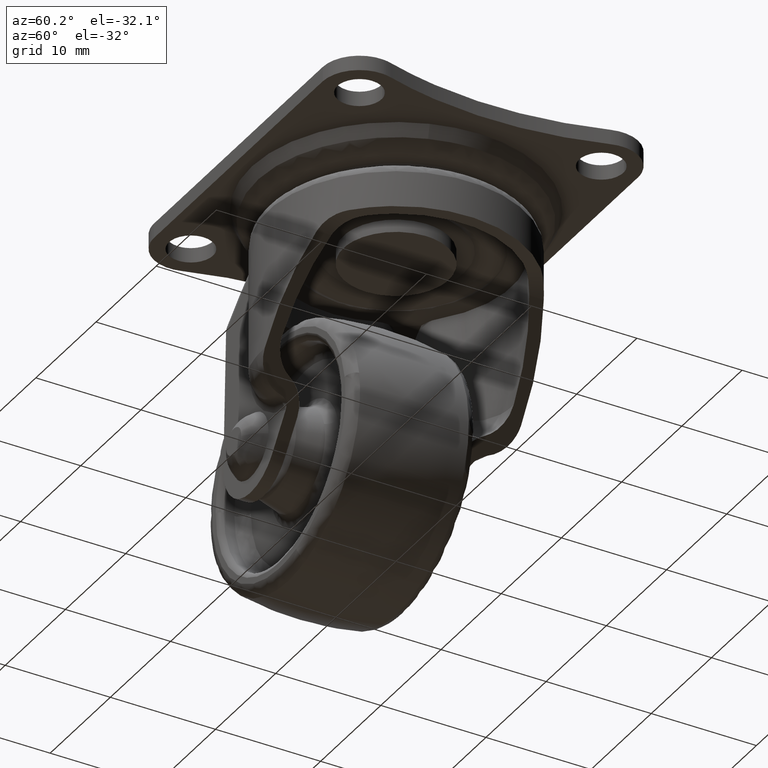
[diagram: clean part render]
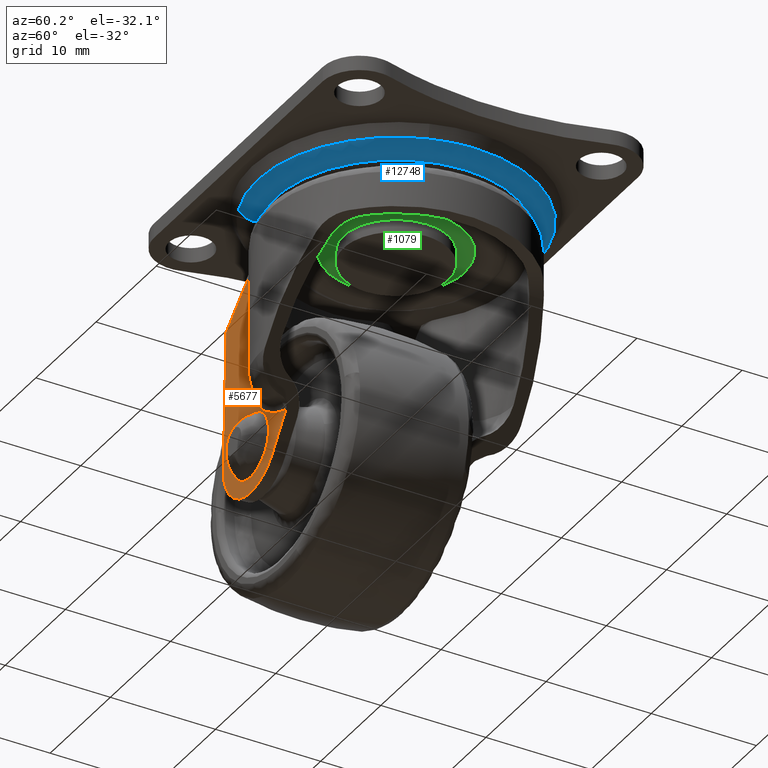
[diagram: same view with three faces highlighted in distinct colors, each labeled with its STEP entity id]
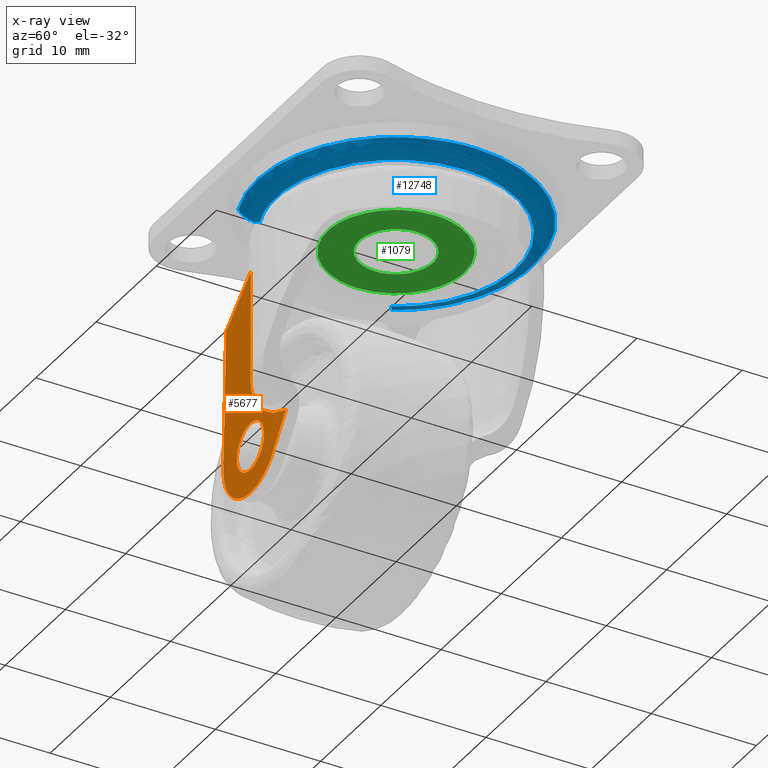
[diagram: x-ray of the same camera — body ghosted, the three highlighted faces saturated]
A machine part, auxiliary view with three faces highlighted in distinct colors.
The next image is the same camera in x-ray (body ghosted, the three faces saturated) — at least one of them is partly hidden behind the body in this view.
Their STEP definitions:

[orange] entity #5677 — the highlighted face is a freeform B-spline surface patch.
#472=CARTESIAN_POINT('',(-11.249914326893560,-8.700001000000000,-22.480363295034369));
#473=VERTEX_POINT('',#472);
#479=CARTESIAN_POINT('',(-9.0,-8.700001000000000,-24.749998000000001));
#480=VERTEX_POINT('',#479);
#481=CARTESIAN_POINT('',(-11.249914326893563,-8.700001000000000,-22.480363295034376));
#482=CARTESIAN_POINT('',(-11.250000000000004,-8.700001000000000,-22.490180460559131));
#483=CARTESIAN_POINT('',(-11.250000000000000,-8.700001000000000,-22.499998000000001));
#484=CARTESIAN_POINT('',(-11.250000000000000,-8.700001000000000,-24.749998000000005));
#485=CARTESIAN_POINT('',(-9.0,-8.700001000000000,-24.749998000000001));
#493=(BOUNDED_CURVE()B_SPLINE_CURVE(2,(#481,#482,#483,#484,#485),.UNSPECIFIED.,.F.,.U.)B_SPLINE_CURVE_WITH_KNOTS((3,2,3),(0.248460105650250,0.250000000000000,0.500000000000000),.UNSPECIFIED.)CURVE()GEOMETRIC_REPRESENTATION_ITEM()RATIONAL_B_SPLINE_CURVE((0.996414028066240,0.998195901549076,1.0,0.707106781186547,1.0))REPRESENTATION_ITEM(''));
#494=EDGE_CURVE('',#473,#480,#493,.T.);
#496=CARTESIAN_POINT('',(-6.767401026231349,-8.700001000000000,-22.779286063345289));
#497=VERTEX_POINT('',#496);
#498=CARTESIAN_POINT('',(-9.0,-8.700001000000000,-24.749998000000001));
#499=CARTESIAN_POINT('',(-7.013928254850907,-8.700000999999999,-24.749997999999991));
#500=CARTESIAN_POINT('',(-6.767401026231349,-8.700001000000000,-22.779286063345285));
#508=(BOUNDED_CURVE()B_SPLINE_CURVE(2,(#498,#499,#500),.UNSPECIFIED.,.F.,.U.)B_SPLINE_CURVE_WITH_KNOTS((3,3),(0.500000000000000,0.728526062166332),.UNSPECIFIED.)CURVE()GEOMETRIC_REPRESENTATION_ITEM()RATIONAL_B_SPLINE_CURVE((1.0,0.732265064277359,0.954005413075127))REPRESENTATION_ITEM(''));
#509=EDGE_CURVE('',#480,#497,#508,.T.);
#559=CARTESIAN_POINT('',(-9.0,-8.700001000000000,-20.249998000000001));
#560=VERTEX_POINT('',#559);
#561=CARTESIAN_POINT('',(-6.767401026231349,-8.700001000000000,-22.779286063345292));
#562=CARTESIAN_POINT('',(-6.750000000000000,-8.700001000000000,-22.640184146302783));
#563=CARTESIAN_POINT('',(-6.749999999999999,-8.700001000000000,-22.499998000000001));
#564=CARTESIAN_POINT('',(-6.749999999999998,-8.700001000000000,-20.249998000000009));
#565=CARTESIAN_POINT('',(-9.0,-8.700001000000000,-20.249998000000001));
#573=(BOUNDED_CURVE()B_SPLINE_CURVE(2,(#561,#562,#563,#564,#565),.UNSPECIFIED.,.F.,.U.)B_SPLINE_CURVE_WITH_KNOTS((3,2,3),(0.728526062166331,0.750000000000000,1.0),.UNSPECIFIED.)CURVE()GEOMETRIC_REPRESENTATION_ITEM()RATIONAL_B_SPLINE_CURVE((0.954005413075126,0.974841716909187,1.0,0.707106781186547,1.0))REPRESENTATION_ITEM(''));
#574=EDGE_CURVE('',#497,#560,#573,.T.);
#576=CARTESIAN_POINT('',(-9.0,-8.700001000000000,-20.249998000000001));
#577=CARTESIAN_POINT('',(-11.230450223651754,-8.700001000000000,-20.249997999999994));
#578=CARTESIAN_POINT('',(-11.249914326893563,-8.700001000000000,-22.480363295034376));
#586=(BOUNDED_CURVE()B_SPLINE_CURVE(2,(#576,#577,#578),.UNSPECIFIED.,.F.,.U.)B_SPLINE_CURVE_WITH_KNOTS((3,3),(0.0,0.248460105650250),.UNSPECIFIED.)CURVE()GEOMETRIC_REPRESENTATION_ITEM()RATIONAL_B_SPLINE_CURVE((1.0,0.708910879637471,0.996414028066240))REPRESENTATION_ITEM(''));
#587=EDGE_CURVE('',#560,#473,#586,.T.);
#1970=CARTESIAN_POINT('',(-8.952652154529352,-8.700001000000000,-5.549854102424480));
#1971=VERTEX_POINT('',#1970);
#2156=CARTESIAN_POINT('',(-13.046715876436259,-8.700001000000000,-9.166312362105970));
#2157=VERTEX_POINT('',#2156);
#2175=CARTESIAN_POINT('',(-8.952652154529352,-8.700001000000000,-5.549854102424480));
#2176=CARTESIAN_POINT('',(-9.656898944636879,-8.700001000000004,-6.127801723857024));
#2177=CARTESIAN_POINT('',(-10.346634401134139,-8.700000999999999,-6.722177109755606));
#2178=CARTESIAN_POINT('',(-11.708511184854499,-8.700000999999999,-7.930845569303217));
#2179=CARTESIAN_POINT('',(-12.380521905948619,-8.700001000000000,-8.545286497504012));
#2180=CARTESIAN_POINT('',(-13.046715876436240,-8.700001000000000,-9.166312362105980));
#2181=B_SPLINE_CURVE_WITH_KNOTS('',3,(#2175,#2176,#2177,#2178,#2179,#2180),.UNSPECIFIED.,.F.,.U.,(4,2,4),(0.0,0.500000000000000,1.0),.UNSPECIFIED.);
#2182=EDGE_CURVE('',#1971,#2157,#2181,.T.);
#2947=CARTESIAN_POINT('',(-3.132371273860845,-8.700001000000000,-22.115442874786950));
#2948=VERTEX_POINT('',#2947);
#3003=CARTESIAN_POINT('',(-8.952652154529352,-8.700001000000000,-16.126446853378749));
#3004=VERTEX_POINT('',#3003);
#3018=CARTESIAN_POINT('',(-3.132371273860845,-8.700001000000000,-22.115442874786950));
#3019=CARTESIAN_POINT('',(-3.491875737716829,-8.700001000000006,-22.015678301536742));
#3020=CARTESIAN_POINT('',(-3.844392835921416,-8.700000999999997,-21.898165202276981));
#3021=CARTESIAN_POINT('',(-4.362097079651821,-8.700000999999999,-21.693773210269448));
#3022=CARTESIAN_POINT('',(-4.532814870132990,-8.700000999999997,-21.620942644278362));
#3023=CARTESIAN_POINT('',(-4.870381061016619,-8.700001000000000,-21.465452919679290));
#3024=CARTESIAN_POINT('',(-5.037400315005284,-8.700000999999999,-21.382703512003371));
#3025=CARTESIAN_POINT('',(-5.531215003361037,-8.700001000000000,-21.119431517261440));
#3026=CARTESIAN_POINT('',(-5.847684703294849,-8.700000999999999,-20.925674089011189));
#3027=CARTESIAN_POINT('',(-6.301860433897275,-8.700001000000000,-20.605642364634122));
#3028=CARTESIAN_POINT('',(-6.449819336341913,-8.700000999999999,-20.494049338222109));
#3029=CARTESIAN_POINT('',(-6.666294592126086,-8.700000999999997,-20.318837091439939));
#3030=CARTESIAN_POINT('',(-6.737541372187183,-8.700000999999997,-20.259127617725291));
#3031=CARTESIAN_POINT('',(-6.878143552612761,-8.700000999999999,-20.137000370020150));
#3032=CARTESIAN_POINT('',(-6.947610512345516,-8.700000999999999,-20.074477370695138));
#3033=CARTESIAN_POINT('',(-7.288619872482950,-8.700001000000000,-19.756115116027161));
#3034=CARTESIAN_POINT('',(-7.539831650200234,-8.700000999999999,-19.484719579597272));
#3035=CARTESIAN_POINT('',(-7.995028026538497,-8.700000999999999,-18.905395111188120));
#3036=CARTESIAN_POINT('',(-8.199181669370745,-8.700000999999999,-18.597596946261941));
#3037=CARTESIAN_POINT('',(-8.418426637289313,-8.700001000000002,-18.185041754605479));
#3038=CARTESIAN_POINT('',(-8.460462932629474,-8.700000999999999,-18.101062355315928));
#3039=CARTESIAN_POINT('',(-8.539749535586772,-8.700000999999999,-17.932022792782082));
#3040=CARTESIAN_POINT('',(-8.577124633309605,-8.700000999999995,-17.846739447784859));
#3041=CARTESIAN_POINT('',(-8.682192511991890,-8.700001000000000,-17.588513618415181));
#3042=CARTESIAN_POINT('',(-8.742868523907625,-8.700001000000000,-17.413209022467921));
#3043=CARTESIAN_POINT('',(-8.818215439898957,-8.700001000000000,-17.144977985637500));
#3044=CARTESIAN_POINT('',(-8.840710895470526,-8.700001000000000,-17.054685586653271));
#3045=CARTESIAN_POINT('',(-8.880047508013664,-8.700000999999999,-16.872197336527961));
#3046=CARTESIAN_POINT('',(-8.896922530312445,-8.700000999999997,-16.779759701748720));
#3047=CARTESIAN_POINT('',(-8.937974617308090,-8.700000999999999,-16.501213530575420));
#3048=CARTESIAN_POINT('',(-8.952652190188296,-8.700000999999999,-16.314447781594829));
#3049=CARTESIAN_POINT('',(-8.952652154529352,-8.700001000000000,-16.126446853378749));
#3050=B_SPLINE_CURVE_WITH_KNOTS('',3,(#3018,#3019,#3020,#3021,#3022,#3023,#3024,#3025,#3026,#3027,#3028,#3029,#3030,#3031,#3032,#3033,#3034,#3035,#3036,#3037,#3038,#3039,#3040,#3041,#3042,#3043,#3044,#3045,#3046,#3047,#3048,#3049),.UNSPECIFIED.,.F.,.U.,(4,2,2,2,2,2,2,2,2,2,2,2,2,2,2,4),(0.0,0.124999999999999,0.187499999999999,0.249999999999998,0.374999999999997,0.437499999999997,0.468749999999997,0.499999999999998,0.624999999999998,0.749999999999998,0.781249999999997,0.812499999999997,0.874999999999997,0.906249999999997,0.937499999999998,1.0),.UNSPECIFIED.);
#3051=EDGE_CURVE('',#2948,#3004,#3050,.T.);
#3072=CARTESIAN_POINT('',(-8.952652154529352,-8.700001000000000,-16.126446853378749));
#3073=CARTESIAN_POINT('',(-8.952652154529352,-8.700001000000000,-5.549854102424480));
#3074=QUASI_UNIFORM_CURVE('',1,(#3072,#3073),.UNSPECIFIED.,.F.,.U.);
#3075=EDGE_CURVE('',#3004,#1971,#3074,.T.);
#4630=CARTESIAN_POINT('',(-13.497372000000000,-8.700001000000000,-22.346223999999999));
#4631=VERTEX_POINT('',#4630);
#4637=CARTESIAN_POINT('',(-13.046715876436259,-8.700001000000000,-9.166312362105970));
#4638=CARTESIAN_POINT('',(-13.497372000000000,-8.700001000000000,-22.346223999999999));
#4639=QUASI_UNIFORM_CURVE('',1,(#4637,#4638),.UNSPECIFIED.,.F.,.U.);
#4640=EDGE_CURVE('',#2157,#4631,#4639,.T.);
#4736=CARTESIAN_POINT('',(-8.999999933181520,-8.700001000000000,-26.999998000000001));
#4737=VERTEX_POINT('',#4736);
#4743=CARTESIAN_POINT('',(-13.497372000000000,-8.700001000000000,-22.346223999999999));
#4744=CARTESIAN_POINT('',(-13.562612075466793,-8.700001000000000,-24.254279281736331));
#4745=CARTESIAN_POINT('',(-12.235891153172700,-8.700001000000000,-25.627138640868171));
#4746=CARTESIAN_POINT('',(-10.909170230878608,-8.700001000000000,-26.999998000000016));
#4747=CARTESIAN_POINT('',(-8.999999933181520,-8.700001000000000,-26.999998000000019));
#4755=(BOUNDED_CURVE()B_SPLINE_CURVE(2,(#4743,#4744,#4745,#4746,#4747),.UNSPECIFIED.,.F.,.U.)B_SPLINE_CURVE_WITH_KNOTS((3,2,3),(0.0,0.500000000000000,1.0),.UNSPECIFIED.)CURVE()GEOMETRIC_REPRESENTATION_ITEM()RATIONAL_B_SPLINE_CURVE((1.0,0.920575949235637,1.0,0.920575949235637,1.0))REPRESENTATION_ITEM(''));
#4756=EDGE_CURVE('',#4631,#4737,#4755,.T.);
#4878=CARTESIAN_POINT('',(-5.374184000000000,-8.700001000000000,-25.165234000000002));
#4879=VERTEX_POINT('',#4878);
#4880=CARTESIAN_POINT('',(-5.374184000000000,-8.700001000000000,-25.165234000000002));
#4881=CARTESIAN_POINT('',(-3.132371273860845,-8.700001000000000,-22.115442874786950));
#4882=QUASI_UNIFORM_CURVE('',1,(#4880,#4881),.UNSPECIFIED.,.F.,.U.);
#4883=EDGE_CURVE('',#4879,#2948,#4882,.T.);
#4967=CARTESIAN_POINT('',(-8.999999933181520,-8.700001000000000,-26.999997999999959));
#4968=CARTESIAN_POINT('',(-6.722871384703336,-8.700001000000000,-26.999997408354549));
#4969=CARTESIAN_POINT('',(-5.374183999999980,-8.700001000000000,-25.165234000000019));
#4977=(BOUNDED_CURVE()B_SPLINE_CURVE(2,(#4967,#4968,#4969),.UNSPECIFIED.,.F.,.U.)CURVE()GEOMETRIC_REPRESENTATION_ITEM()QUASI_UNIFORM_CURVE()RATIONAL_B_SPLINE_CURVE((1.0,0.892265566084803,1.0))REPRESENTATION_ITEM(''));
#4978=EDGE_CURVE('',#4737,#4879,#4977,.T.);
#5657=CARTESIAN_POINT('',(-14.016981932848079,-8.700001000000000,-4.478419657673728));
#5658=CARTESIAN_POINT('',(-14.016981932848079,-8.700001000000000,-28.071433211867681));
#5659=CARTESIAN_POINT('',(-2.614549878342332,-8.700001000000000,-4.478419657673728));
#5660=CARTESIAN_POINT('',(-2.614549878342332,-8.700001000000000,-28.071433211867681));
#5661=B_SPLINE_SURFACE_WITH_KNOTS('',1,1,((#5657,#5659),(#5658,#5660)),.UNSPECIFIED.,.F.,.F.,.U.,(2,2),(2,2),(0.0,23.593013554193949),(0.0,11.402432054505750),.UNSPECIFIED.);
#5662=ORIENTED_EDGE('',*,*,#3075,.T.);
#5663=ORIENTED_EDGE('',*,*,#2182,.T.);
#5664=ORIENTED_EDGE('',*,*,#4640,.T.);
#5665=ORIENTED_EDGE('',*,*,#4756,.T.);
#5666=ORIENTED_EDGE('',*,*,#4978,.T.);
#5667=ORIENTED_EDGE('',*,*,#4883,.T.);
#5668=ORIENTED_EDGE('',*,*,#3051,.T.);
#5669=EDGE_LOOP('',(#5662,#5663,#5664,#5665,#5666,#5667,#5668));
#5670=FACE_OUTER_BOUND('',#5669,.T.);
#5671=ORIENTED_EDGE('',*,*,#587,.F.);
#5672=ORIENTED_EDGE('',*,*,#574,.F.);
#5673=ORIENTED_EDGE('',*,*,#509,.F.);
#5674=ORIENTED_EDGE('',*,*,#494,.F.);
#5675=EDGE_LOOP('',(#5671,#5672,#5673,#5674));
#5676=FACE_BOUND('',#5675,.T.);
#5677=ADVANCED_FACE('',(#5670,#5676),#5661,.T.);

[blue] entity #12748 — the highlighted face is a freeform B-spline surface patch.
#9897=CARTESIAN_POINT('',(12.508432404109939,-4.110425278932556,-2.800139212492120));
#9898=VERTEX_POINT('',#9897);
#9899=CARTESIAN_POINT('',(13.166490693493159,0.0,-2.800139212494620));
#9900=VERTEX_POINT('',#9899);
#9901=CARTESIAN_POINT('',(12.508432404109948,-4.110425278932557,-2.800139212492120));
#9902=CARTESIAN_POINT('',(13.166490693493163,-2.107888540729940,-2.800139212494620));
#9903=CARTESIAN_POINT('',(13.166490693493159,0.0,-2.800139212494620));
#9911=(BOUNDED_CURVE()B_SPLINE_CURVE(2,(#9901,#9902,#9903),.UNSPECIFIED.,.F.,.U.)B_SPLINE_CURVE_WITH_KNOTS((3,3),(0.446917947511327,0.500000000000000),.UNSPECIFIED.)CURVE()GEOMETRIC_REPRESENTATION_ITEM()RATIONAL_B_SPLINE_CURVE((0.902030181676226,0.937810507141472,1.0))REPRESENTATION_ITEM(''));
#9912=EDGE_CURVE('',#9898,#9900,#9911,.T.);
#9914=CARTESIAN_POINT('',(-11.616679221768109,6.197518942232530,-2.800139212573901));
#9915=VERTEX_POINT('',#9914);
#9916=CARTESIAN_POINT('',(13.166490693493159,0.0,-2.800139212494620));
#9917=CARTESIAN_POINT('',(13.166490693493161,13.166490693493161,-2.800139212494620));
#9918=CARTESIAN_POINT('',(0.0,13.166490693493159,-2.800139212494620));
#9919=CARTESIAN_POINT('',(-7.898720447894549,13.166490693493156,-2.800139212494620));
#9920=CARTESIAN_POINT('',(-11.616679221768115,6.197518942232530,-2.800139212573901));
#9928=(BOUNDED_CURVE()B_SPLINE_CURVE(2,(#9916,#9917,#9918,#9919,#9920),.UNSPECIFIED.,.F.,.U.)B_SPLINE_CURVE_WITH_KNOTS((3,2,3),(0.500000000000000,0.750000000000000,0.919885466191596),.UNSPECIFIED.)CURVE()GEOMETRIC_REPRESENTATION_ITEM()RATIONAL_B_SPLINE_CURVE((1.0,0.707106781186548,1.0,0.800966795910078,0.872436381135544))REPRESENTATION_ITEM(''));
#9929=EDGE_CURVE('',#9900,#9915,#9928,.T.);
#9946=CARTESIAN_POINT('',(-4.814755914170824,-12.254575058919229,-2.800138669547468));
#9947=VERTEX_POINT('',#9946);
#9961=CARTESIAN_POINT('',(7.074350292918480,-11.104505622265680,-2.800139212494335));
#9962=VERTEX_POINT('',#9961);
#9963=CARTESIAN_POINT('',(-4.814755914170824,-12.254575058919233,-2.800138669547468));
#9964=CARTESIAN_POINT('',(-2.493736449541153,-13.166490693493163,-2.800139212494620));
#9965=CARTESIAN_POINT('',(0.0,-13.166490693493159,-2.800139212494620));
#9966=CARTESIAN_POINT('',(3.837682066383953,-13.166490693493161,-2.800139212494621));
#9967=CARTESIAN_POINT('',(7.074350292918481,-11.104505622265684,-2.800139212494335));
#9975=(BOUNDED_CURVE()B_SPLINE_CURVE(2,(#9963,#9964,#9965,#9966,#9967),.UNSPECIFIED.,.F.,.U.)B_SPLINE_CURVE_WITH_KNOTS((3,2,3),(0.187908143668375,0.250000000000000,0.341950076714178),.UNSPECIFIED.)CURVE()GEOMETRIC_REPRESENTATION_ITEM()RATIONAL_B_SPLINE_CURVE((0.890644774292660,0.927254865347712,1.0,0.892273784244162,0.863791038911343))REPRESENTATION_ITEM(''));
#9976=EDGE_CURVE('',#9947,#9962,#9975,.T.);
#10086=CARTESIAN_POINT('',(7.074350292918480,-11.104505622265684,-2.800139212494335));
#10087=CARTESIAN_POINT('',(11.040375229036524,-8.577869081841332,-2.800139212494621));
#10088=CARTESIAN_POINT('',(12.508432404109941,-4.110425278932556,-2.800139212492121));
#10096=(BOUNDED_CURVE()B_SPLINE_CURVE(2,(#10086,#10087,#10088),.UNSPECIFIED.,.F.,.U.)B_SPLINE_CURVE_WITH_KNOTS((3,3),(0.341950076714179,0.446917947511327),.UNSPECIFIED.)CURVE()GEOMETRIC_REPRESENTATION_ITEM()RATIONAL_B_SPLINE_CURVE((0.863791038911343,0.831275860687654,0.902030181676226))REPRESENTATION_ITEM(''));
#10097=EDGE_CURVE('',#9962,#9898,#10096,.T.);
#12651=CARTESIAN_POINT('',(-4.123587455750639,-10.495402289907361,-3.897291385648118));
#12652=CARTESIAN_POINT('',(5.222481180251966,-14.167422696887394,-3.897291385648118));
#12653=CARTESIAN_POINT('',(9.949078400655541,-5.307850950227034,-3.897291385648118));
#12654=CARTESIAN_POINT('',(15.256929350882571,4.641227450428510,-3.897291385648118));
#12655=CARTESIAN_POINT('',(5.307850950227034,9.949078400655541,-3.897291385648118));
#12656=CARTESIAN_POINT('',(-4.641227450428509,15.256929350882574,-3.897291385648118));
#12657=CARTESIAN_POINT('',(-9.949078400655541,5.307850950227034,-3.897291385648118));
#12658=CARTESIAN_POINT('',(-4.627525765199482,-11.778031879728596,-3.969111935452208));
#12659=CARTESIAN_POINT('',(5.860713875774001,-15.898805169001593,-3.969111935452207));
#12660=CARTESIAN_POINT('',(11.164942451946214,-5.956516575333058,-3.969111935452206));
#12661=CARTESIAN_POINT('',(17.121459027279268,5.208425876613155,-3.969111935452206));
#12662=CARTESIAN_POINT('',(5.956516575333058,11.164942451946214,-3.969111935452206));
#12663=CARTESIAN_POINT('',(-5.208425876613155,17.121459027279268,-3.969111935452206));
#12664=CARTESIAN_POINT('',(-11.164942451946212,5.956516575333059,-3.969111935452206));
#12665=CARTESIAN_POINT('',(-4.830955026715707,-12.295802379339085,-2.706265578573673));
#12666=CARTESIAN_POINT('',(6.118354947093936,-16.597727737697632,-2.706265578573672));
#12667=CARTESIAN_POINT('',(11.655761112525330,-6.218369200172397,-2.706265578573672));
#12668=CARTESIAN_POINT('',(17.874130312697734,5.437391912352936,-2.706265578573673));
#12669=CARTESIAN_POINT('',(6.218369200172399,11.655761112525330,-2.706265578573672));
#12670=CARTESIAN_POINT('',(-5.437391912352935,17.874130312697734,-2.706265578573673));
#12671=CARTESIAN_POINT('',(-11.655761112525330,6.218369200172400,-2.706265578573672));
#12679=(BOUNDED_SURFACE()B_SPLINE_SURFACE(2,2,((#12651,#12658,#12665),(#12652,#12659,#12666),(#12653,#12660,#12667),(#12654,#12661,#12668),(#12655,#12662,#12669),(#12656,#12663,#12670),(#12657,#12664,#12671)),.UNSPECIFIED.,.F.,.F.,.U.)B_SPLINE_SURFACE_WITH_KNOTS((3,2,2,3),(3,3),(0.0,20.137280085757538,42.025628005059218,63.913975924360891),(0.0,2.492074945731570),.UNSPECIFIED.)GEOMETRIC_REPRESENTATION_ITEM()RATIONAL_B_SPLINE_SURFACE(((0.880321261608759,0.725771892352718,0.883209832469696),(0.672084516341903,0.554093229959051,0.674289806427076),(0.919985403564351,0.758472589951512,0.923004123144481),(0.650527917452995,0.536321111698838,0.652662474538605),(0.919985403564351,0.758472589951512,0.923004123144481),(0.650527917452995,0.536321111698838,0.652662474538605),(0.919985403564351,0.758472589951512,0.923004123144481)))REPRESENTATION_ITEM('')SURFACE());
#12680=ORIENTED_EDGE('',*,*,#9912,.F.);
#12681=ORIENTED_EDGE('',*,*,#10097,.F.);
#12682=ORIENTED_EDGE('',*,*,#9976,.F.);
#12683=CARTESIAN_POINT('',(-4.161652030387486,-10.592284683646660,-3.900002000000000));
#12684=VERTEX_POINT('',#12683);
#12685=CARTESIAN_POINT('',(-4.161652030387486,-10.592284683646655,-3.900002000000000));
#12686=CARTESIAN_POINT('',(-4.612047459739060,-11.738637742056763,-3.900001999517341));
#12687=CARTESIAN_POINT('',(-4.814755914170824,-12.254575058919226,-2.800138669547468));
#12695=(BOUNDED_CURVE()B_SPLINE_CURVE(2,(#12685,#12686,#12687),.UNSPECIFIED.,.F.,.U.)B_SPLINE_CURVE_WITH_KNOTS((3,3),(-1.642270600972632,-0.344513327966894),.UNSPECIFIED.)CURVE()GEOMETRIC_REPRESENTATION_ITEM()RATIONAL_B_SPLINE_CURVE((0.866927483260814,0.739296821813061,0.869553753073934))REPRESENTATION_ITEM(''));
#12696=EDGE_CURVE('',#12684,#9947,#12695,.T.);
#12697=ORIENTED_EDGE('',*,*,#12696,.F.);
#12698=CARTESIAN_POINT('',(11.380502731976520,0.0,-3.900002000000000));
#12699=VERTEX_POINT('',#12698);
#12700=CARTESIAN_POINT('',(11.380502731976520,0.0,-3.900002000000000));
#12701=CARTESIAN_POINT('',(11.380502731976520,-11.380502731976520,-3.900002000000001));
#12702=CARTESIAN_POINT('',(0.0,-11.380502731976520,-3.900002000000000));
#12703=CARTESIAN_POINT('',(-2.155470373647039,-11.380502731976520,-3.900002000000000));
#12704=CARTESIAN_POINT('',(-4.161652030387486,-10.592284683646655,-3.900002000000000));
#12712=(BOUNDED_CURVE()B_SPLINE_CURVE(2,(#12700,#12701,#12702,#12703,#12704),.UNSPECIFIED.,.F.,.U.)B_SPLINE_CURVE_WITH_KNOTS((3,2,3),(0.0,0.250000000000000,0.312091868783678),.UNSPECIFIED.)CURVE()GEOMETRIC_REPRESENTATION_ITEM()RATIONAL_B_SPLINE_CURVE((1.0,0.707106781186547,1.0,0.927254850759224,0.890644759608907))REPRESENTATION_ITEM(''));
#12713=EDGE_CURVE('',#12699,#12684,#12712,.T.);
#12714=ORIENTED_EDGE('',*,*,#12713,.F.);
#12715=CARTESIAN_POINT('',(-10.040917713465969,5.356847386335332,-3.900002000000000));
#12716=VERTEX_POINT('',#12715);
#12717=CARTESIAN_POINT('',(-10.040917713465966,5.356847386335332,-3.900002000000000));
#12718=CARTESIAN_POINT('',(-6.827286915581398,11.380502731976518,-3.900002000000000));
#12719=CARTESIAN_POINT('',(0.0,11.380502731976520,-3.900002000000000));
#12720=CARTESIAN_POINT('',(11.380502731976520,11.380502731976520,-3.900002000000001));
#12721=CARTESIAN_POINT('',(11.380502731976520,0.0,-3.900002000000000));
#12729=(BOUNDED_CURVE()B_SPLINE_CURVE(2,(#12717,#12718,#12719,#12720,#12721),.UNSPECIFIED.,.F.,.U.)B_SPLINE_CURVE_WITH_KNOTS((3,2,3),(0.580114533809270,0.750000000000000,1.0),.UNSPECIFIED.)CURVE()GEOMETRIC_REPRESENTATION_ITEM()RATIONAL_B_SPLINE_CURVE((0.872436381134815,0.800966795911093,1.0,0.707106781186547,1.0))REPRESENTATION_ITEM(''));
#12730=EDGE_CURVE('',#12716,#12699,#12729,.T.);
#12731=ORIENTED_EDGE('',*,*,#12730,.F.);
#12732=CARTESIAN_POINT('',(-10.040917713465966,5.356847386335332,-3.900001999999999));
#12733=CARTESIAN_POINT('',(-11.127598372361605,5.936593442724566,-3.900001999104041));
#12734=CARTESIAN_POINT('',(-11.616679221768111,6.197518942232530,-2.800139212573900));
#12742=(BOUNDED_CURVE()B_SPLINE_CURVE(2,(#12732,#12733,#12734),.UNSPECIFIED.,.F.,.U.)B_SPLINE_CURVE_WITH_KNOTS((3,3),(-1.642270600557982,-0.344513704832646),.UNSPECIFIED.)CURVE()GEOMETRIC_REPRESENTATION_ITEM()RATIONAL_B_SPLINE_CURVE((0.905988149162928,0.772606943359406,0.908732670367850))REPRESENTATION_ITEM(''));
#12743=EDGE_CURVE('',#12716,#9915,#12742,.T.);
#12744=ORIENTED_EDGE('',*,*,#12743,.T.);
#12745=ORIENTED_EDGE('',*,*,#9929,.F.);
#12746=EDGE_LOOP('',(#12680,#12681,#12682,#12697,#12714,#12731,#12744,#12745));
#12747=FACE_OUTER_BOUND('',#12746,.T.);
#12748=ADVANCED_FACE('',(#12747),#12679,.T.);

[green] entity #1079 — the highlighted face is a freeform B-spline surface patch.
#66=CARTESIAN_POINT('',(-0.413119821342078,-3.475533342267670,-5.699998000000001));
#67=VERTEX_POINT('',#66);
#68=CARTESIAN_POINT('',(3.500000000000004,0.0,-5.699998000000001));
#69=VERTEX_POINT('',#68);
#70=CARTESIAN_POINT('',(-0.413119821342078,-3.475533342267670,-5.699998000000001));
#71=CARTESIAN_POINT('',(-0.207284418825568,-3.500000000000000,-5.699998000000000));
#72=CARTESIAN_POINT('',(3.552714E-015,-3.500000000000000,-5.699998000000001));
#73=CARTESIAN_POINT('',(3.500000000000003,-3.500000000000000,-5.699998000000000));
#74=CARTESIAN_POINT('',(3.500000000000004,0.0,-5.699998000000001));
#82=(BOUNDED_CURVE()B_SPLINE_CURVE(2,(#70,#71,#72,#73,#74),.UNSPECIFIED.,.F.,.U.)B_SPLINE_CURVE_WITH_KNOTS((3,2,3),(0.229562473511421,0.250000000000000,0.500000000000000),.UNSPECIFIED.)CURVE()GEOMETRIC_REPRESENTATION_ITEM()RATIONAL_B_SPLINE_CURVE((0.956026754179608,0.976055948328699,1.0,0.707106781186547,1.0))REPRESENTATION_ITEM(''));
#83=EDGE_CURVE('',#67,#69,#82,.T.);
#124=CARTESIAN_POINT('',(0.213665688679831,3.493472051335644,-5.699998000000193));
#125=VERTEX_POINT('',#124);
#131=CARTESIAN_POINT('',(3.500000000000004,0.0,-5.699998000000001));
#132=CARTESIAN_POINT('',(3.500000000000002,3.292475199626738,-5.699998000000000));
#133=CARTESIAN_POINT('',(0.213665688679831,3.493472051335644,-5.699998000000193));
#141=(BOUNDED_CURVE()B_SPLINE_CURVE(2,(#131,#132,#133),.UNSPECIFIED.,.F.,.U.)B_SPLINE_CURVE_WITH_KNOTS((3,3),(0.500000000000000,0.739333169669867),.UNSPECIFIED.)CURVE()GEOMETRIC_REPRESENTATION_ITEM()RATIONAL_B_SPLINE_CURVE((1.0,0.719603750266266,0.976072486231078))REPRESENTATION_ITEM(''));
#142=EDGE_CURVE('',#69,#125,#141,.T.);
#165=CARTESIAN_POINT('',(-3.499999999999996,0.0,-5.699998000000001));
#166=VERTEX_POINT('',#165);
#167=CARTESIAN_POINT('',(-3.499999999999996,0.0,-5.699998000000001));
#168=CARTESIAN_POINT('',(-3.499999999999997,-3.108610840751556,-5.699998000000000));
#169=CARTESIAN_POINT('',(-0.413119821342078,-3.475533342267671,-5.699998000000001));
#177=(BOUNDED_CURVE()B_SPLINE_CURVE(2,(#167,#168,#169),.UNSPECIFIED.,.F.,.U.)B_SPLINE_CURVE_WITH_KNOTS((3,3),(0.0,0.229562473511421),.UNSPECIFIED.)CURVE()GEOMETRIC_REPRESENTATION_ITEM()RATIONAL_B_SPLINE_CURVE((1.0,0.731050832857848,0.956026754179608))REPRESENTATION_ITEM(''));
#178=EDGE_CURVE('',#166,#67,#177,.T.);
#180=CARTESIAN_POINT('',(0.213665688679831,3.493472051335644,-5.699998000000193));
#181=CARTESIAN_POINT('',(0.106932565811408,3.499999999999999,-5.699998000000001));
#182=CARTESIAN_POINT('',(3.552714E-015,3.500000000000000,-5.699998000000001));
#183=CARTESIAN_POINT('',(-3.499999999999997,3.500000000000000,-5.699998000000000));
#184=CARTESIAN_POINT('',(-3.499999999999996,0.0,-5.699998000000001));
#192=(BOUNDED_CURVE()B_SPLINE_CURVE(2,(#180,#181,#182,#183,#184),.UNSPECIFIED.,.F.,.U.)B_SPLINE_CURVE_WITH_KNOTS((3,2,3),(0.739333169669867,0.750000000000000,1.0),.UNSPECIFIED.)CURVE()GEOMETRIC_REPRESENTATION_ITEM()RATIONAL_B_SPLINE_CURVE((0.976072486231078,0.987503030920282,1.0,0.707106781186547,1.0))REPRESENTATION_ITEM(''));
#193=EDGE_CURVE('',#125,#166,#192,.T.);
#635=CARTESIAN_POINT('',(0.453848911009345,-6.492513749686459,-5.699998000461495));
#636=VERTEX_POINT('',#635);
#637=CARTESIAN_POINT('',(-6.508357213500130,0.0,-5.699998000000001));
#638=VERTEX_POINT('',#637);
#639=CARTESIAN_POINT('',(0.453848911009345,-6.492513749686460,-5.699998000461495));
#640=CARTESIAN_POINT('',(0.227200996189055,-6.508357213500130,-5.699998000000001));
#641=CARTESIAN_POINT('',(0.0,-6.508357213500130,-5.699998000000001));
#642=CARTESIAN_POINT('',(-6.508357213500129,-6.508357213500129,-5.699998000000001));
#643=CARTESIAN_POINT('',(-6.508357213500130,0.0,-5.699998000000001));
#651=(BOUNDED_CURVE()B_SPLINE_CURVE(2,(#639,#640,#641,#642,#643),.UNSPECIFIED.,.F.,.U.)B_SPLINE_CURVE_WITH_KNOTS((3,2,3),(0.737833686531494,0.750000000000000,1.0),.UNSPECIFIED.)CURVE()GEOMETRIC_REPRESENTATION_ITEM()RATIONAL_B_SPLINE_CURVE((0.972879876379367,0.985746277148464,1.0,0.707106781186548,1.0))REPRESENTATION_ITEM(''));
#652=EDGE_CURVE('',#636,#638,#651,.T.);
#701=CARTESIAN_POINT('',(-0.081784276443847,6.507843341526582,-5.699998000618954));
#702=VERTEX_POINT('',#701);
#716=CARTESIAN_POINT('',(-6.508357213500130,0.0,-5.699998000000001));
#717=CARTESIAN_POINT('',(-6.508357213500130,6.427080392198700,-5.699998000000001));
#718=CARTESIAN_POINT('',(-0.081784276443847,6.507843341526582,-5.699998000618954));
#726=(BOUNDED_CURVE()B_SPLINE_CURVE(2,(#716,#717,#718),.UNSPECIFIED.,.F.,.U.)B_SPLINE_CURVE_WITH_KNOTS((3,3),(0.0,0.247784295915408),.UNSPECIFIED.)CURVE()GEOMETRIC_REPRESENTATION_ITEM()RATIONAL_B_SPLINE_CURVE((1.0,0.709702639991645,0.994854295629465))REPRESENTATION_ITEM(''));
#727=EDGE_CURVE('',#638,#702,#726,.T.);
#755=CARTESIAN_POINT('',(6.508357213500130,0.0,-5.699998000000001));
#756=VERTEX_POINT('',#755);
#757=CARTESIAN_POINT('',(6.508357213500130,0.0,-5.699998000000001));
#758=CARTESIAN_POINT('',(6.508357213500129,-6.069282916633601,-5.699998000000002));
#759=CARTESIAN_POINT('',(0.453848911009345,-6.492513749686459,-5.699998000461495));
#767=(BOUNDED_CURVE()B_SPLINE_CURVE(2,(#757,#758,#759),.UNSPECIFIED.,.F.,.U.)B_SPLINE_CURVE_WITH_KNOTS((3,3),(0.500000000000000,0.737833686531495),.UNSPECIFIED.)CURVE()GEOMETRIC_REPRESENTATION_ITEM()RATIONAL_B_SPLINE_CURVE((1.0,0.721360504038084,0.972879876379368))REPRESENTATION_ITEM(''));
#768=EDGE_CURVE('',#756,#636,#767,.T.);
#770=CARTESIAN_POINT('',(-0.081784276443847,6.507843341526582,-5.699998000618954));
#771=CARTESIAN_POINT('',(-0.040893752676327,6.508357213500130,-5.699998000000000));
#772=CARTESIAN_POINT('',(0.0,6.508357213500130,-5.699998000000001));
#773=CARTESIAN_POINT('',(6.508357213500129,6.508357213500129,-5.699998000000001));
#774=CARTESIAN_POINT('',(6.508357213500130,0.0,-5.699998000000001));
#782=(BOUNDED_CURVE()B_SPLINE_CURVE(2,(#770,#771,#772,#773,#774),.UNSPECIFIED.,.F.,.U.)B_SPLINE_CURVE_WITH_KNOTS((3,2,3),(0.247784295915408,0.250000000000000,0.500000000000000),.UNSPECIFIED.)CURVE()GEOMETRIC_REPRESENTATION_ITEM()RATIONAL_B_SPLINE_CURVE((0.994854295629465,0.997404141194903,1.0,0.707106781186548,1.0))REPRESENTATION_ITEM(''));
#783=EDGE_CURVE('',#702,#756,#782,.T.);
#1062=CARTESIAN_POINT('',(-7.158541905203426,-7.157737283097876,-5.699998000000001));
#1063=CARTESIAN_POINT('',(7.158541439689442,-7.157737283097876,-5.699998000000001));
#1064=CARTESIAN_POINT('',(-7.158541905203426,7.157965817377455,-5.699998000000001));
#1065=CARTESIAN_POINT('',(7.158541439689442,7.157965817377455,-5.699998000000001));
#1066=B_SPLINE_SURFACE_WITH_KNOTS('',1,1,((#1062,#1064),(#1063,#1065)),.UNSPECIFIED.,.F.,.F.,.U.,(2,2),(2,2),(0.0,14.317083344892870),(0.0,14.315703100475330),.UNSPECIFIED.);
#1067=ORIENTED_EDGE('',*,*,#727,.T.);
#1068=ORIENTED_EDGE('',*,*,#783,.T.);
#1069=ORIENTED_EDGE('',*,*,#768,.T.);
#1070=ORIENTED_EDGE('',*,*,#652,.T.);
#1071=EDGE_LOOP('',(#1067,#1068,#1069,#1070));
#1072=FACE_OUTER_BOUND('',#1071,.T.);
#1073=ORIENTED_EDGE('',*,*,#142,.T.);
#1074=ORIENTED_EDGE('',*,*,#193,.T.);
#1075=ORIENTED_EDGE('',*,*,#178,.T.);
#1076=ORIENTED_EDGE('',*,*,#83,.T.);
#1077=EDGE_LOOP('',(#1073,#1074,#1075,#1076));
#1078=FACE_BOUND('',#1077,.T.);
#1079=ADVANCED_FACE('',(#1072,#1078),#1066,.F.);